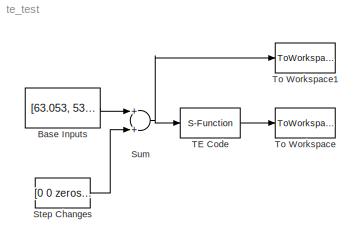
MODEL te_test
KIND model
CONFIG AbsTol = auto
CONFIG FixedStep = 1/3600
CONFIG MaxStep = 1/60
CONFIG MinStep = auto
CONFIG RelTol = 1e-3
CONFIG Solver = ode45
CONFIG SolverMode = SingleTasking
CONFIG StartTime = 0.0
CONFIG StopFcn = teplot
CONFIG StopTime = 3
BLOCK [Constant] Base Inputs
  Value = [63.053, 53.98, 24.644, 61.302, 22.21, 40.064, 38.10, 46.534, 47.446, 41.106, 18.114, 50]
BLOCK [Constant] Step Changes
  Value = [0 0  zeros(1,10)]
BLOCK [Sum] Sum
  Ports = [2, 1]
BLOCK [S-Function] TE Code
  FunctionName = temex
  Parameters = [], [zeros(1,7), 0, zeros(1,12)]
  Ports = [1, 1]
BLOCK [ToWorkspace] To Workspace
  MaxDataPoints = inf
  SampleTime = -1
  SaveFormat = Array
  VariableName = simout
BLOCK [ToWorkspace] To Workspace1
  MaxDataPoints = inf
  SampleTime = -1
  SaveFormat = Array
  VariableName = xmv
LINE Base Inputs:1 -> Sum:1
LINE Step Changes:1 -> Sum:2
NET Sum:1 -> TE Code:1, To Workspace1:1
LINE TE Code:1 -> To Workspace:1
note: NET lines group one-source signal fan-out (src -> all destinations, sorted); 1:1 wires keep LINE
